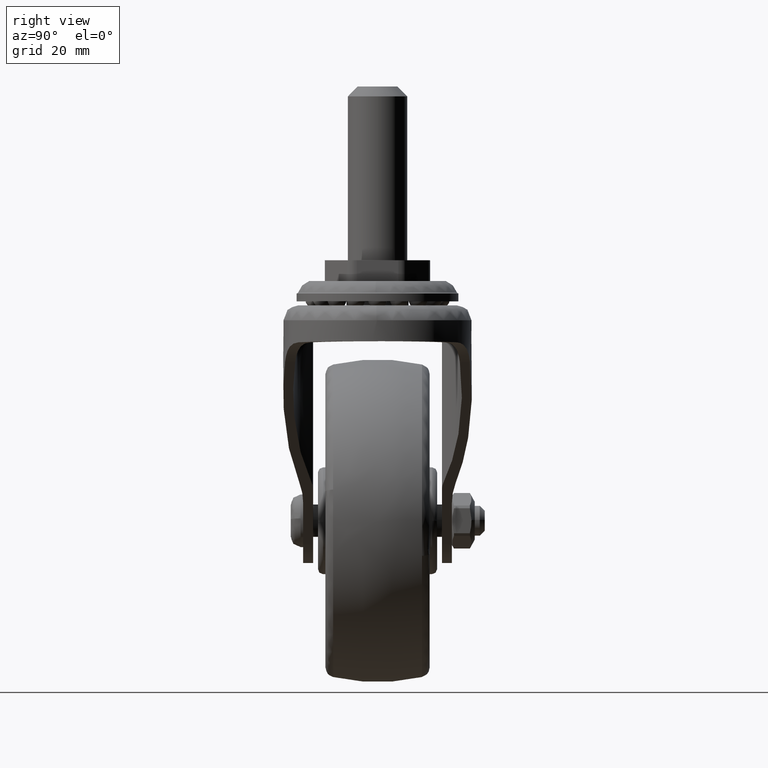
[diagram: clean part render]
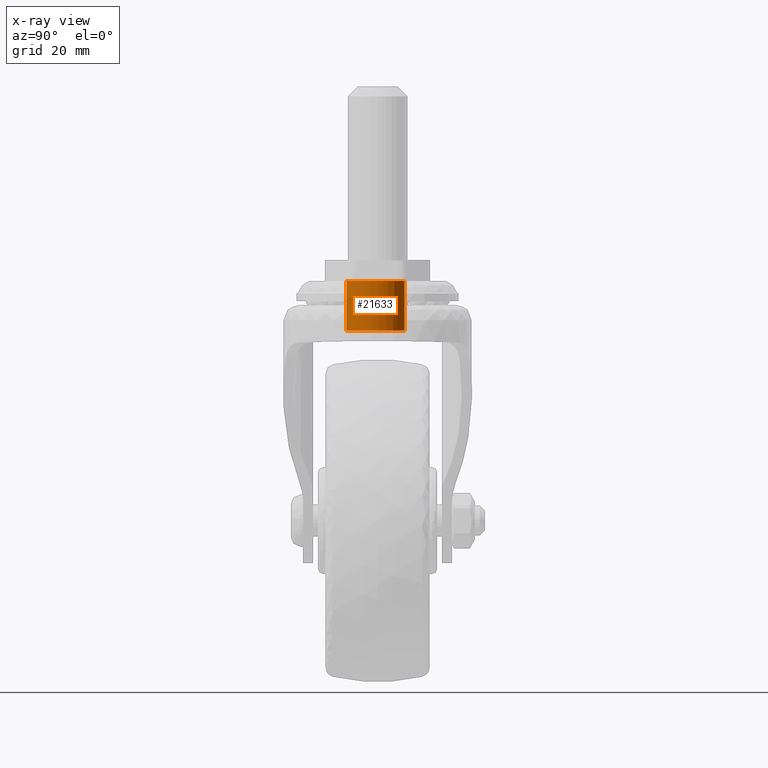
[diagram: x-ray — body ghosted, one internal face saturated and labeled with its STEP entity id]
A machine part, right view, then the same camera in x-ray: the body is ghosted and one INTERNAL B-rep face — a face not visible from any outside direction — is saturated and labeled: STEP entity #21633.
In plain terms, the highlighted face is a freeform B-spline surface patch.
Its self-contained STEP definition (entity closure, byte-faithful):
#20401=CARTESIAN_POINT('',(29.412658773652499,-3.124999999999826,38.256474000000097));
#20402=VERTEX_POINT('',#20401);
#20451=CARTESIAN_POINT('',(24.0,-6.249999999999760,38.256474000000097));
#20452=VERTEX_POINT('',#20451);
#20544=CARTESIAN_POINT('',(29.412658773652499,-3.124999999999826,38.256474000000097));
#20545=CARTESIAN_POINT('',(27.608439182435184,-6.249999999999987,38.256474000000097));
#20546=CARTESIAN_POINT('',(24.0,-6.249999999999987,38.256474000000097));
#20554=(BOUNDED_CURVE()B_SPLINE_CURVE(2,(#20544,#20545,#20546),.UNSPECIFIED.,.F.,.U.)CURVE()GEOMETRIC_REPRESENTATION_ITEM()QUASI_UNIFORM_CURVE()RATIONAL_B_SPLINE_CURVE((1.0,0.866025403784438,1.0))REPRESENTATION_ITEM(''));
#20555=EDGE_CURVE('',#20402,#20452,#20554,.T.);
#20775=CARTESIAN_POINT('',(20.922353221840030,-5.439723366944383,38.256474000000097));
#20776=VERTEX_POINT('',#20775);
#20777=CARTESIAN_POINT('',(24.0,-6.249999999999760,38.256474000000097));
#20778=CARTESIAN_POINT('',(22.354512612514650,-6.249999999999863,38.256474000000097));
#20779=CARTESIAN_POINT('',(20.922353221840023,-5.439723366944382,38.256474000000097));
#20787=(BOUNDED_CURVE()B_SPLINE_CURVE(2,(#20777,#20778,#20779),.UNSPECIFIED.,.F.,.U.)B_SPLINE_CURVE_WITH_KNOTS((3,3),(0.0,0.491857795481237),.UNSPECIFIED.)CURVE()GEOMETRIC_REPRESENTATION_ITEM()RATIONAL_B_SPLINE_CURVE((1.0,0.934103550454926,0.933030465716413))REPRESENTATION_ITEM(''));
#20788=EDGE_CURVE('',#20452,#20776,#20787,.T.);
#20931=CARTESIAN_POINT('',(29.412658773652598,3.124999999999935,38.256474000000097));
#20932=VERTEX_POINT('',#20931);
#20968=CARTESIAN_POINT('',(29.412658773652598,3.124999999999935,38.256474000000097));
#20969=CARTESIAN_POINT('',(31.216878364870311,2.722128E-014,38.256474000000097));
#20970=CARTESIAN_POINT('',(29.412658773652751,-3.124999999999970,38.256474000000097));
#20978=(BOUNDED_CURVE()B_SPLINE_CURVE(2,(#20968,#20969,#20970),.UNSPECIFIED.,.F.,.U.)CURVE()GEOMETRIC_REPRESENTATION_ITEM()QUASI_UNIFORM_CURVE()RATIONAL_B_SPLINE_CURVE((1.0,0.866025403784439,1.0))REPRESENTATION_ITEM(''));
#20979=EDGE_CURVE('',#20932,#20402,#20978,.T.);
#21516=CARTESIAN_POINT('',(30.250000000000000,1.421085E-014,48.299999000000099));
#21517=VERTEX_POINT('',#21516);
#21518=CARTESIAN_POINT('',(20.922359327719111,-5.439726821474142,48.299999000000120));
#21519=VERTEX_POINT('',#21518);
#21520=CARTESIAN_POINT('',(30.250000000000000,1.421085E-014,48.299999000000099));
#21521=CARTESIAN_POINT('',(30.250000000000650,-6.249999999998827,48.299999000000099));
#21522=CARTESIAN_POINT('',(24.000000000001780,-6.249999999996837,48.299999000000113));
#21523=CARTESIAN_POINT('',(22.354516363341915,-6.249999999996314,48.299999000000120));
#21524=CARTESIAN_POINT('',(20.922359327719118,-5.439726821474142,48.299999000000113));
#21532=(BOUNDED_CURVE()B_SPLINE_CURVE(2,(#21520,#21521,#21522,#21523,#21524),.UNSPECIFIED.,.F.,.U.)B_SPLINE_CURVE_WITH_KNOTS((3,2,3),(0.500000000000000,0.750000000000000,0.833929808405689),.UNSPECIFIED.)CURVE()GEOMETRIC_REPRESENTATION_ITEM()RATIONAL_B_SPLINE_CURVE((1.0,0.707106781186547,1.0,0.901670113046645,0.869362694673675))REPRESENTATION_ITEM(''));
#21533=EDGE_CURVE('',#21517,#21519,#21532,.T.);
#21535=CARTESIAN_POINT('',(27.077640672280879,5.439726821474173,48.299999000000128));
#21536=VERTEX_POINT('',#21535);
#21537=CARTESIAN_POINT('',(27.077640672280886,5.439726821474173,48.299999000000128));
#21538=CARTESIAN_POINT('',(30.249999999998874,3.644897335640841,48.299999000000099));
#21539=CARTESIAN_POINT('',(30.250000000000000,1.421085E-014,48.299999000000099));
#21547=(BOUNDED_CURVE()B_SPLINE_CURVE(2,(#21537,#21538,#21539),.UNSPECIFIED.,.F.,.U.)B_SPLINE_CURVE_WITH_KNOTS((3,3),(0.333929808405689,0.500000000000000),.UNSPECIFIED.)CURVE()GEOMETRIC_REPRESENTATION_ITEM()RATIONAL_B_SPLINE_CURVE((0.869362694673676,0.805436668139902,1.0))REPRESENTATION_ITEM(''));
#21548=EDGE_CURVE('',#21536,#21517,#21547,.T.);
#21583=CARTESIAN_POINT('',(27.077647250646670,5.439723099624386,48.551087125000109));
#21584=CARTESIAN_POINT('',(32.517370350271044,2.362075848977717,48.551087125000116));
#21585=CARTESIAN_POINT('',(29.439723099624370,-3.077647250646654,48.551087125000109));
#21586=CARTESIAN_POINT('',(26.362075848977707,-8.517370350271026,48.551087125000116));
#21587=CARTESIAN_POINT('',(20.922352749353330,-5.439723099624358,48.551087125000109));
#21588=CARTESIAN_POINT('',(27.077647250646670,5.439723099624386,37.999108671875092));
#21589=CARTESIAN_POINT('',(32.517370350271044,2.362075848977717,37.999108671875085));
#21590=CARTESIAN_POINT('',(29.439723099624370,-3.077647250646654,37.999108671875092));
#21591=CARTESIAN_POINT('',(26.362075848977707,-8.517370350271026,37.999108671875085));
#21592=CARTESIAN_POINT('',(20.922352749353330,-5.439723099624358,37.999108671875092));
#21600=(BOUNDED_SURFACE()B_SPLINE_SURFACE(2,1,((#21583,#21588),(#21584,#21589),(#21585,#21590),(#21586,#21591),(#21587,#21592)),.UNSPECIFIED.,.F.,.F.,.U.)B_SPLINE_SURFACE_WITH_KNOTS((3,2,3),(2,2),(0.0,10.355339059327379,20.710678118654759),(0.0,10.551978453125020),.UNSPECIFIED.)GEOMETRIC_REPRESENTATION_ITEM()RATIONAL_B_SPLINE_SURFACE(((1.0,1.0),(0.707106781186548,0.707106781186548),(1.0,1.0),(0.707106781186548,0.707106781186548),(1.0,1.0)))REPRESENTATION_ITEM('')SURFACE());
#21601=ORIENTED_EDGE('',*,*,#21548,.T.);
#21602=ORIENTED_EDGE('',*,*,#21533,.T.);
#21603=CARTESIAN_POINT('',(20.922359327719111,-5.439726821474142,48.299999000000120));
#21604=CARTESIAN_POINT('',(20.922353221840030,-5.439723366944383,38.256474000000097));
#21605=QUASI_UNIFORM_CURVE('',1,(#21603,#21604),.UNSPECIFIED.,.F.,.U.);
#21606=EDGE_CURVE('',#21519,#20776,#21605,.T.);
#21607=ORIENTED_EDGE('',*,*,#21606,.T.);
#21608=ORIENTED_EDGE('',*,*,#20788,.F.);
#21609=ORIENTED_EDGE('',*,*,#20555,.F.);
#21610=ORIENTED_EDGE('',*,*,#20979,.F.);
#21611=CARTESIAN_POINT('',(27.077646778159998,5.439723366944454,38.256474000000097));
#21612=VERTEX_POINT('',#21611);
#21613=CARTESIAN_POINT('',(27.077646778160027,5.439723366944496,38.256474000000097));
#21614=CARTESIAN_POINT('',(28.560685840810891,4.600660406355563,38.256474000000097));
#21615=CARTESIAN_POINT('',(29.412658773652741,3.125000000000017,38.256474000000097));
#21623=(BOUNDED_CURVE()B_SPLINE_CURVE(2,(#21613,#21614,#21615),.UNSPECIFIED.,.F.,.U.)B_SPLINE_CURVE_WITH_KNOTS((3,3),(0.491857795481244,1.0),.UNSPECIFIED.)CURVE()GEOMETRIC_REPRESENTATION_ITEM()RATIONAL_B_SPLINE_CURVE((0.933030465716412,0.931921853329514,1.0))REPRESENTATION_ITEM(''));
#21624=EDGE_CURVE('',#21612,#20932,#21623,.T.);
#21625=ORIENTED_EDGE('',*,*,#21624,.F.);
#21626=CARTESIAN_POINT('',(27.077640672280879,5.439726821474173,48.299999000000128));
#21627=CARTESIAN_POINT('',(27.077646778159998,5.439723366944454,38.256474000000097));
#21628=QUASI_UNIFORM_CURVE('',1,(#21626,#21627),.UNSPECIFIED.,.F.,.U.);
#21629=EDGE_CURVE('',#21536,#21612,#21628,.T.);
#21630=ORIENTED_EDGE('',*,*,#21629,.F.);
#21631=EDGE_LOOP('',(#21601,#21602,#21607,#21608,#21609,#21610,#21625,#21630));
#21632=FACE_OUTER_BOUND('',#21631,.T.);
#21633=ADVANCED_FACE('',(#21632),#21600,.T.);